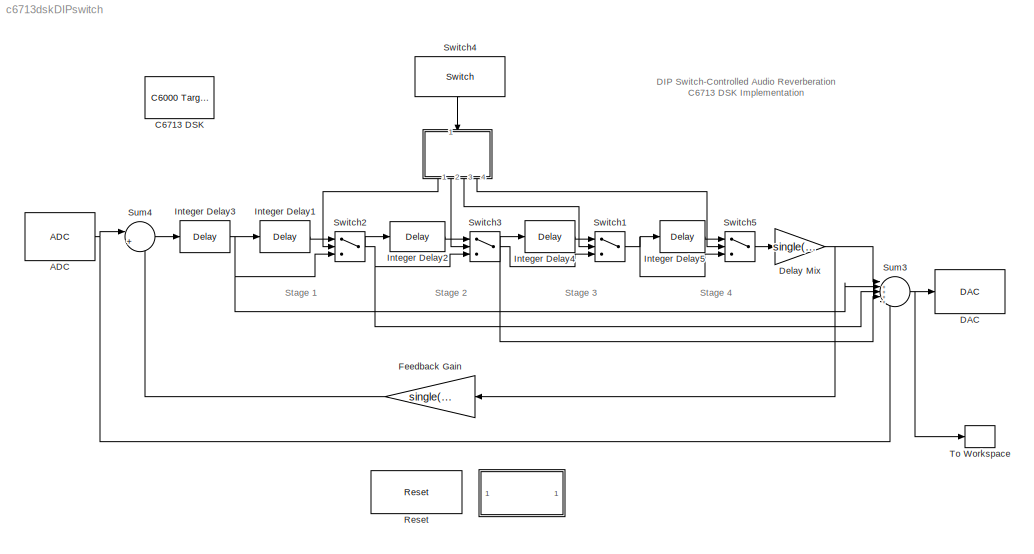
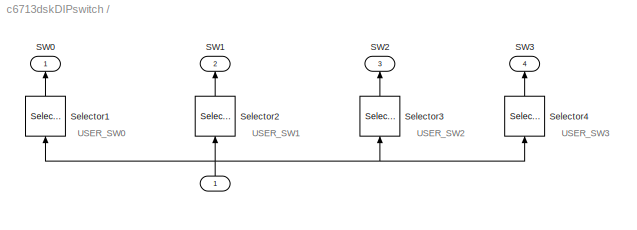
MODEL c6713dskDIPswitch
KIND model
BLOCK [SubSystem]  
  MaskDisplay = disp('Info')
  MaskIconFrame = on
  MaskIconOpaque = on
  MaskIconRotate = none
  MaskIconUnits = autoscale
  MinAlgLoopOccurrences = off
  Ports = []
  TreatAsAtomicUnit = off
BLOCK [SubSystem]   
  MinAlgLoopOccurrences = off
  Ports = [1, 4]
  TreatAsAtomicUnit = off
BLOCK [Inport]   /   
  IconDisplay = Port number
BLOCK [Outport]   /SW0
  BusOutputAsStruct = off
  IconDisplay = Port number
BLOCK [Outport]   /SW1
  BusOutputAsStruct = off
  IconDisplay = Port number
  Port = 2
BLOCK [Outport]   /SW2
  BusOutputAsStruct = off
  IconDisplay = Port number
  Port = 3
BLOCK [Outport]   /SW3
  BusOutputAsStruct = off
  IconDisplay = Port number
  Port = 4
BLOCK [Selector]   /Selector1
  InputPortWidth = 4
  Ports = [1, 1]
BLOCK [Selector]   /Selector2
  Elements = 2
  InputPortWidth = 4
  Ports = [1, 1]
BLOCK [Selector]   /Selector3
  Elements = 3
  InputPortWidth = 4
  Ports = [1, 1]
BLOCK [Selector]   /Selector4
  Elements = 4
  InputPortWidth = 4
  Ports = [1, 1]
BLOCK [Reference] ADC  REF=c6713dsklib/ADC
  ADCsource = Mic In
  CodecDataFormat = 32-bit
  FrameSize = 64
  MicGain = off
  OutputDataType = Single
  Ports = [0, 1]
  SampleRate = 32 kHz
  Scaling = Normalize
  SourceBlock = c6713dsklib/ADC
  SourceGain = 0.0
  SourceType = C6713DSK ADC
  Stereo = on
BLOCK [Reference] C6713 DSK  REF=c6000tgtpreflib/C6000 Target\nPreferences
  Ports = []
  ShowPortLabels = on
  SourceBlock = c6000tgtpreflib/C6000 Target\nPreferences
  SourceType = C6000 Target Preferences
  UserData = DataTag0
  UserDataPersistent = on
BLOCK [Reference] DAC  REF=c6713dsklib/DAC
  CodecDataFormat = 32-bit
  DacAtten = 0.0
  OverflowMode = Saturate
  Ports = [1]
  Scaling = Normalize
  SourceBlock = c6713dsklib/DAC
  SourceType = C6713DSK DAC
BLOCK [Gain] Delay Mix
  Gain = single(.9)
BLOCK [Gain] Feedback Gain
  Gain = single(0.8)
BLOCK [Reference] Integer Delay1  REF=dspsigops/Delay
  Ports = [1, 1]
  SourceBlock = dspsigops/Delay
  SourceType = Delay
  delay = 641
  dif_ic_for_ch = off
  dif_ic_for_dly = off
  dly_unit = Samples
  ic = 0
  ic_detail = off
  reset_popup = None
BLOCK [Reference] Integer Delay2  REF=dspsigops/Delay
  Ports = [1, 1]
  SourceBlock = dspsigops/Delay
  SourceType = Delay
  delay = 237
  dif_ic_for_ch = off
  dif_ic_for_dly = off
  dly_unit = Samples
  ic = 0
  ic_detail = off
  reset_popup = None
BLOCK [Reference] Integer Delay3  REF=dspsigops/Delay
  Ports = [1, 1]
  SourceBlock = dspsigops/Delay
  SourceType = Delay
  delay = 300
  dif_ic_for_ch = off
  dif_ic_for_dly = off
  dly_unit = Samples
  ic = 0
  ic_detail = off
  reset_popup = None
BLOCK [Reference] Integer Delay4  REF=dspsigops/Delay
  Ports = [1, 1]
  SourceBlock = dspsigops/Delay
  SourceType = Delay
  delay = 173
  dif_ic_for_ch = off
  dif_ic_for_dly = off
  dly_unit = Samples
  ic = 0
  ic_detail = off
  reset_popup = None
BLOCK [Reference] Integer Delay5  REF=dspsigops/Delay
  Ports = [1, 1]
  SourceBlock = dspsigops/Delay
  SourceType = Delay
  delay = 41
  dif_ic_for_ch = off
  dif_ic_for_dly = off
  dly_unit = Samples
  ic = 0
  ic_detail = off
  reset_popup = None
BLOCK [Reference] Reset  REF=c6713dsklib/Reset
  Ports = []
  ShowPortLabels = on
  SourceBlock = c6713dsklib/Reset
  SourceType = C6713DSK RESET
BLOCK [Sum] Sum3
  IconShape = round
  Inputs = |+++++
  Ports = [5, 1]
BLOCK [Sum] Sum4
  IconShape = round
  Inputs = |++
  Ports = [2, 1]
BLOCK [Switch] Switch1
  SaturateOnIntegerOverflow = off
  Threshold = 1
  ZeroCross = off
BLOCK [Switch] Switch2
  SaturateOnIntegerOverflow = off
  Threshold = 1
  ZeroCross = off
BLOCK [Switch] Switch3
  SaturateOnIntegerOverflow = off
  Threshold = 1
  ZeroCross = off
BLOCK [Reference] Switch4  REF=c6713dsklib/Switch
  Ports = [0, 1]
  SourceBlock = c6713dsklib/Switch
  SourceType = C6713 DSK DIP Switch
  Ts = 64/32000
  dType = Boolean
  sw0 = on
  sw1 = on
  sw2 = on
  sw3 = on
BLOCK [Switch] Switch5
  SaturateOnIntegerOverflow = off
  Threshold = 1
  ZeroCross = off
BLOCK [ToWorkspace] To Workspace
  MaxDataPoints = inf
  SampleTime = -1
  SaveFormat = Array
  VariableName = y
ANNOTATION (root): DIP Switch-Controlled Audio Reverberation\nC6713 DSK Implementation
ANNOTATION (root): Stage 1
ANNOTATION (root): Stage 2
ANNOTATION (root): Stage 3
ANNOTATION (root): Stage 4
ANNOTATION  : DIP Switch-Controlled Audio Reverberation\n\nThis simulation of audio reverberation demonstrates the use of the C6713 DSK DIP Switch block.\nThis block reads the status of user-controlled DIP switches on the board.\nEach DIP switch controls a corresponding delay block.
ANNOTATION   : USER_SW0
ANNOTATION   : USER_SW1
ANNOTATION   : USER_SW2
ANNOTATION   : USER_SW3
NET   /   :1 ->   /Selector1:1,   /Selector2:1,   /Selector3:1,   /Selector4:1
LINE   /Selector1:1 ->   /SW0:1
LINE   /Selector2:1 ->   /SW1:1
LINE   /Selector3:1 ->   /SW2:1
LINE   /Selector4:1 ->   /SW3:1
LINE   :1 -> Switch2:2
LINE   :2 -> Switch3:2
LINE   :3 -> Switch1:2
LINE   :4 -> Switch5:2
NET ADC:1 -> Sum3:5, Sum4:1
NET Delay Mix:1 -> Feedback Gain:1, Sum3:1
LINE Feedback Gain:1 -> Sum4:2
LINE Integer Delay1:1 -> Switch2:1
LINE Integer Delay2:1 -> Switch3:1
NET Integer Delay3:1 -> Integer Delay1:1, Sum3:2, Switch2:3
LINE Integer Delay4:1 -> Switch1:1
LINE Integer Delay5:1 -> Switch5:1
NET Sum3:1 -> DAC:1, To Workspace:1
LINE Sum4:1 -> Integer Delay3:1
NET Switch1:1 -> Integer Delay5:1, Switch5:3
NET Switch2:1 -> Integer Delay2:1, Sum3:3, Switch3:3
NET Switch3:1 -> Integer Delay4:1, Sum3:4, Switch1:3
LINE Switch4:1 ->   :1
LINE Switch5:1 -> Delay Mix:1
note: NET lines group one-source signal fan-out (src -> all destinations, sorted); 1:1 wires keep LINE
